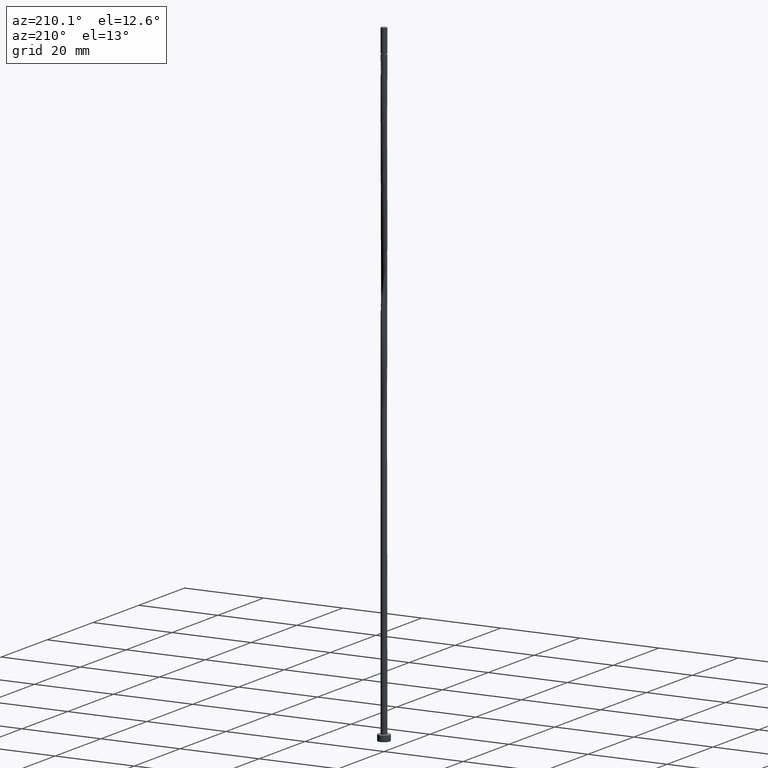
[diagram: clean part render]
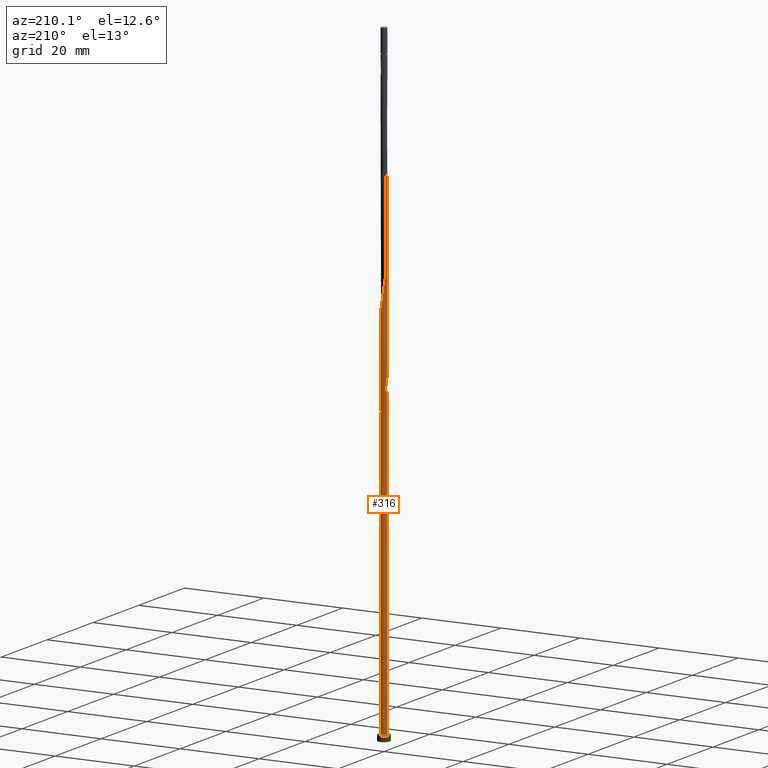
[diagram: same view with one face highlighted and labeled with its STEP entity id]
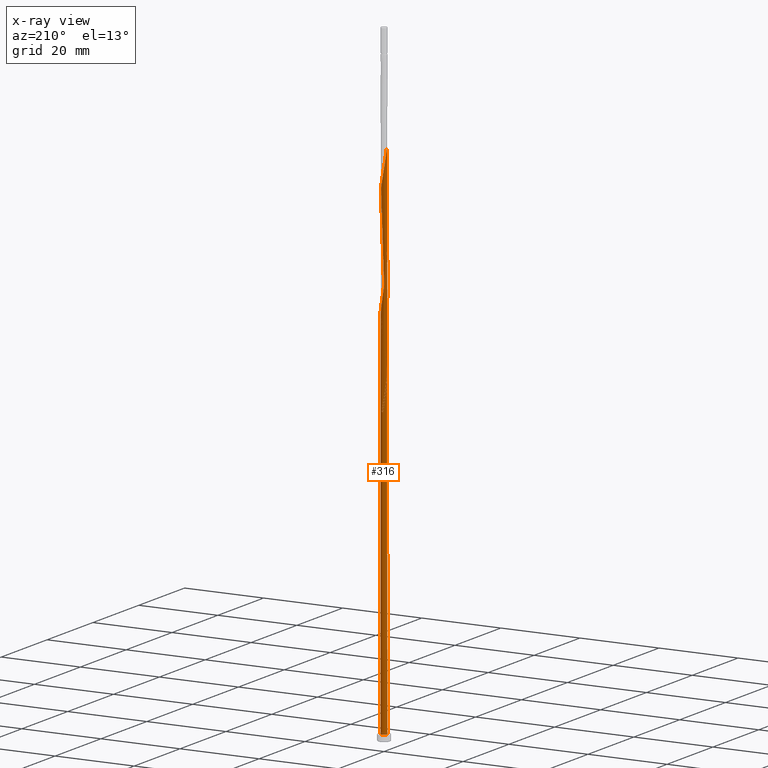
[diagram: x-ray of the same camera — body ghosted, the highlighted face saturated]
A machine part, auxiliary view. The second image highlights one B-rep face of the part: STEP entity #316.
The next image is the same camera in x-ray: the body ghosted, the highlighted face saturated — about 0% of this face is hidden behind the body in this view.
In plain terms, the highlighted cylindrical surface (bore or boss wall) has radius 0.75 mm, axis along (-0, -0, -1).
Its self-contained STEP definition (entity closure, byte-faithful):
#33 = DIRECTION ( 'NONE',  ( -0.000000000000000000, -0.000000000000000000, -1.000000000000000000 ) ) ;
#54 = CARTESIAN_POINT ( 'NONE',  ( 0.04357106947968816812, -0.7564586394380441448, 86.66110191693918807 ) ) ;
#65 = CARTESIAN_POINT ( 'NONE',  ( -0.2549251616522992814, 0.7135413605619579380, 101.2065564623937206 ) ) ;
#74 = CARTESIAN_POINT ( 'NONE',  ( -0.7425581715054576648, -0.1507828677487337565, 107.2671625229997971 ) ) ;
#78 = EDGE_CURVE ( 'NONE', #1143, #1424, #750, .T. ) ;
#80 = CARTESIAN_POINT ( 'NONE',  ( 0.1492481155659936554, -0.7350000000000009859, 87.26716252299982557 ) ) ;
#88 = CARTESIAN_POINT ( 'NONE',  ( 0.5229265053181534340, -0.5376317234276126733, 89.69140494724221924 ) ) ;
#96 = CARTESIAN_POINT ( 'NONE',  ( 0.4577392066508831348, 0.5941168392619601279, 123.6307988866361853 ) ) ;
#101 = VERTEX_POINT ( 'NONE', #1417 ) ;
#111 = CARTESIAN_POINT ( 'NONE',  ( -0.7061990579896029185, 0.2746106366670053589, 131.5095867654240465 ) ) ;
#141 = ORIENTED_EDGE ( 'NONE', *, *, #685, .F. ) ;
#161 = LINE ( 'NONE', #488, #182 ) ;
#167 =( BOUNDED_CURVE ( )  B_SPLINE_CURVE ( 2, ( #1087, #478, #955, #1429, #605, #729, #981, #1486, #570, #1415, #830 ),
 .UNSPECIFIED., .F., .T. ) 
 B_SPLINE_CURVE_WITH_KNOTS ( ( 3, 2, 2, 2, 2, 3 ),
 ( 0.000000000000000000, 0.01136363636363635354, 0.02272727272727270709, 0.03409090909090906063, 0.04545454545454541417, 0.05452521624175129394 ),
 .UNSPECIFIED. ) 
 CURVE ( )  GEOMETRIC_REPRESENTATION_ITEM ( )  RATIONAL_B_SPLINE_CURVE ( ( 0.9090909090909515822, 0.8998376744372534874, 0.9090909090909515822, 0.8998376744372534874, 0.9090909090909515822, 0.8998376744372534874, 0.9090909090909515822, 0.8998376744372534874, 0.9090909090909515822, 0.9017048011080310843, 0.9061101570135917660 ) ) 
 REPRESENTATION_ITEM ( '' )  );
#172 = CARTESIAN_POINT ( 'NONE',  ( 0.2549251616522991148, -0.7135413605619580490, 87.87322312906042043 ) ) ;
#179 = CARTESIAN_POINT ( 'NONE',  ( -0.5431603122336535749, 0.5283038770350836355, 78.17625343209071787 ) ) ;
#180 = EDGE_CURVE ( 'NONE', #101, #1143, #161, .T. ) ;
#181 = CARTESIAN_POINT ( 'NONE',  ( 0.1713128916150395142, 0.7380921381796140546, 98.78231403815132694 ) ) ;
#182 = VECTOR ( 'NONE', #33, 1000.000000000000000 ) ;
#186 = CARTESIAN_POINT ( 'NONE',  ( -0.6065796087172177220, 0.4410908957215835535, 78.78231403815132694 ) ) ;
#189 = CARTESIAN_POINT ( 'NONE',  ( -0.7061990579896029185, 0.2746106366670053589, 104.8429200987573466 ) ) ;
#196 = CARTESIAN_POINT ( 'NONE',  ( 0.4577392066508831348, 0.5941168392619601279, 96.96413221996948550 ) ) ;
#200 = ORIENTED_EDGE ( 'NONE', *, *, #1190, .F. ) ;
#204 = CARTESIAN_POINT ( 'NONE',  ( 0.6065796087172178330, 0.4410908957215833315, 95.75201100784828157 ) ) ;
#211 = CARTESIAN_POINT ( 'NONE',  ( 0.7061990579896032516, -0.2746106366670050813, 118.1762534320907179 ) ) ;
#223 = ORIENTED_EDGE ( 'NONE', *, *, #78, .T. ) ;
#226 = CARTESIAN_POINT ( 'NONE',  ( -0.5229265053181534340, 0.5376317234276126733, 129.6914049472422334 ) ) ;
#241 = CARTESIAN_POINT ( 'NONE',  ( 0.4456267333261540453, -0.6128172042470101388, 115.7520110078483100 ) ) ;
#266 = CARTESIAN_POINT ( 'NONE',  ( -0.7500000000000011102, 1.869602587936987035E-17, 133.0843747103655801 ) ) ;
#279 = AXIS2_PLACEMENT_3D ( 'NONE', #336, #1523, #327 ) ;
#281 = CARTESIAN_POINT ( 'NONE',  ( -0.7500000000000012212, -9.983677819583506438E-16, 81.44995033563405684 ) ) ;
#290 = EDGE_LOOP ( 'NONE', ( #200, #141, #1237, #223, #772, #839, #1510, #1026, #1042 ) ) ;
#292 = CARTESIAN_POINT ( 'NONE',  ( 0.04357106947968818200, 0.7564586394380442558, 74.53988979572706342 ) ) ;
#294 = CARTESIAN_POINT ( 'NONE',  ( -0.3723181010681130276, -0.6599298014888367314, 84.23685949269678019 ) ) ;
#300 = CARTESIAN_POINT ( 'NONE',  ( 0.7487589812118533583, 0.04312757881667920318, 93.32776858360585948 ) ) ;
#307 = CARTESIAN_POINT ( 'NONE',  ( -0.5431603122336535749, -0.5283038770350835245, 83.02473828057559047 ) ) ;
#313 = CARTESIAN_POINT ( 'NONE',  ( -0.2718154963415760905, 0.6990109698342255040, 76.35807161390889064 ) ) ;
#315 = CARTESIAN_POINT ( 'NONE',  ( -0.7500000000000012212, -0.02158164489286728063, 79.87313938175049088 ) ) ;
#316 = ADVANCED_FACE ( 'NONE', ( #616 ), #607, .T. ) ;
#321 = CARTESIAN_POINT ( 'NONE',  ( -0.6002262773101529891, 0.4624462426082153188, 103.6307988866361711 ) ) ;
#327 = DIRECTION ( 'NONE',  ( 1.000000000000000000, 0.000000000000000000, 0.000000000000000000 ) ) ;
#336 = CARTESIAN_POINT ( 'NONE',  ( 0.000000000000000000, 0.000000000000000000, 1.500000000000000000 ) ) ;
#340 = CIRCLE ( 'NONE', #667, 0.7500000000000001110 ) ;
#348 = CARTESIAN_POINT ( 'NONE',  ( -0.3502759474892264691, 0.6631792824044840939, 128.4792837351210153 ) ) ;
#365 = CARTESIAN_POINT ( 'NONE',  ( 0.7425581715054576648, 0.1507828677487336733, 120.6004958563331400 ) ) ;
#391 = DIRECTION ( 'NONE',  ( -1.000000000000000000, 0.000000000000000000, 0.000000000000000000 ) ) ;
#413 = CARTESIAN_POINT ( 'NONE',  ( -0.1713128916150394865, 0.7380921381796138325, 75.75201100784829578 ) ) ;
#415 = CARTESIAN_POINT ( 'NONE',  ( 0.5431603122336540190, 0.5283038770350831914, 96.35807161390889064 ) ) ;
#424 = CARTESIAN_POINT ( 'NONE',  ( 0.7061990579896032516, -0.2746106366670050813, 91.50958676542406067 ) ) ;
#429 = CARTESIAN_POINT ( 'NONE',  ( 0.7425581715054576648, 0.1507828677487336733, 93.93382918966648276 ) ) ;
#434 = CARTESIAN_POINT ( 'NONE',  ( -0.4577392066508833013, -0.5941168392619599059, 110.2974655533028283 ) ) ;
#441 = CARTESIAN_POINT ( 'NONE',  ( -0.7500000000000011102, -1.020803013013594984E-15, 79.75104137703227991 ) ) ;
#455 = CARTESIAN_POINT ( 'NONE',  ( -0.1492481155659935443, 0.7350000000000009859, 127.2671625229997687 ) ) ;
#461 = CARTESIAN_POINT ( 'NONE',  ( 0.7062785383531196004, 0.2523303910784085446, 121.2065564623937348 ) ) ;
#478 = CARTESIAN_POINT ( 'NONE',  ( -0.2549251616522992814, 0.7135413605619579380, 74.53988979572707763 ) ) ;
#488 = CARTESIAN_POINT ( 'NONE',  ( -0.7500000000000001110, 0.000000000000000000, 160.0000000000000000 ) ) ;
#499 = CARTESIAN_POINT ( 'NONE',  ( -0.7500000000000007772, 0.08589669553884342335, 132.5984147573942948 ) ) ;
#521 = CARTESIAN_POINT ( 'NONE',  ( -0.6699989052007818691, 0.3538779144080836936, 79.38837464421192180 ) ) ;
#532 = CARTESIAN_POINT ( 'NONE',  ( 0.4456267333261540453, -0.6128172042470101388, 89.08534434118161016 ) ) ;
#536 = CARTESIAN_POINT ( 'NONE',  ( -0.7425581715054577758, 0.1507828677487338953, 80.60049585633313995 ) ) ;
#538 = CARTESIAN_POINT ( 'NONE',  ( -0.3502759474892264691, 0.6631792824044840939, 101.8126170684543439 ) ) ;
#544 = CARTESIAN_POINT ( 'NONE',  ( -0.6699989052007818691, -0.3538779144080836381, 108.4792837351210295 ) ) ;
#549 = CARTESIAN_POINT ( 'NONE',  ( -0.7062785383531196004, -0.2523303910784086557, 107.8732231290604204 ) ) ;
#557 = CIRCLE ( 'NONE', #842, 0.7500000000000001110 ) ;
#558 = CARTESIAN_POINT ( 'NONE',  ( 0.7062785383531196004, 0.2523303910784085446, 94.53988979572707763 ) ) ;
#563 = CARTESIAN_POINT ( 'NONE',  ( -0.7500000000000001110, 0.000000000000000000, 1.500000000000000000 ) ) ;
#564 = CARTESIAN_POINT ( 'NONE',  ( 0.2718154963415759240, 0.6990109698342252820, 124.8429200987573608 ) ) ;
#570 = CARTESIAN_POINT ( 'NONE',  ( -0.7305794244539263183, 0.1695691733911902921, 78.78231403815131273 ) ) ;
#575 = CARTESIAN_POINT ( 'NONE',  ( 0.04357106947968816812, -0.7564586394380441448, 113.3277685836058737 ) ) ;
#585 = CARTESIAN_POINT ( 'NONE',  ( -0.7305794244539263183, 0.1695691733911902921, 132.1156473714846413 ) ) ;
#597 = CARTESIAN_POINT ( 'NONE',  ( -0.7500000000000011102, 1.869602587936987035E-17, 133.0843747103655801 ) ) ;
#602 = CARTESIAN_POINT ( 'NONE',  ( -0.7500000000000012212, 0.02158164489286663185, 81.32785233091581745 ) ) ;
#605 = CARTESIAN_POINT ( 'NONE',  ( -0.5229265053181534340, 0.5376317234276126733, 76.35807161390889064 ) ) ;
#607 = CYLINDRICAL_SURFACE ( 'NONE', #1252, 0.7500000000000001110 ) ;
#616 = FACE_OUTER_BOUND ( 'NONE', #290, .T. ) ;
#626 = CARTESIAN_POINT ( 'NONE',  ( 0.000000000000000000, 0.000000000000000000, 73.93382918966646855 ) ) ;
#663 = CARTESIAN_POINT ( 'NONE',  ( -0.6699989052007818691, -0.3538779144080836381, 81.81261706845434389 ) ) ;
#667 = AXIS2_PLACEMENT_3D ( 'NONE', #626, #1198, #849 ) ;
#670 = CARTESIAN_POINT ( 'NONE',  ( -0.7549597909182493849, 0.06452771011537537793, 106.0550413108786074 ) ) ;
#678 = CARTESIAN_POINT ( 'NONE',  ( -0.2718154963415762571, -0.6990109698342252820, 111.5095867654240323 ) ) ;
#685 = EDGE_CURVE ( 'NONE', #101, #1295, #1173, .T. ) ;
#688 = CARTESIAN_POINT ( 'NONE',  ( -0.7305794244539263183, 0.1695691733911902921, 105.4489807048179983 ) ) ;
#695 = CARTESIAN_POINT ( 'NONE',  ( 0.6065796087172178330, 0.4410908957215833315, 122.4186776745149530 ) ) ;
#703 = CARTESIAN_POINT ( 'NONE',  ( -0.06387091106767561755, -0.7472753888088291552, 112.7217079775452504 ) ) ;
#710 = CARTESIAN_POINT ( 'NONE',  ( -0.6002262773101529891, 0.4624462426082153188, 130.2974655533028567 ) ) ;
#721 = DIRECTION ( 'NONE',  ( -0.000000000000000000, -0.000000000000000000, -1.000000000000000000 ) ) ;
#723 = CARTESIAN_POINT ( 'NONE',  ( 0.6699989052007818691, 0.3538779144080834160, 121.8126170684543581 ) ) ;
#729 = CARTESIAN_POINT ( 'NONE',  ( -0.6002262773101529891, 0.4624462426082153188, 76.96413221996951393 ) ) ;
#750 = CIRCLE ( 'NONE', #279, 0.7500000000000001110 ) ;
#751 = LINE ( 'NONE', #1437, #863 ) ;
#772 = ORIENTED_EDGE ( 'NONE', *, *, #1495, .T. ) ;
#773 = CARTESIAN_POINT ( 'NONE',  ( -0.7500000000000012212, -9.983677819583506438E-16, 81.44995033563405684 ) ) ;
#786 = CARTESIAN_POINT ( 'NONE',  ( 0.6699989052007818691, 0.3538779144080834160, 95.14595040178768670 ) ) ;
#794 = CARTESIAN_POINT ( 'NONE',  ( -0.6065796087172176110, -0.4410908957215836090, 82.41867767451493876 ) ) ;
#804 = CARTESIAN_POINT ( 'NONE',  ( -0.6532126676498779538, 0.3685284396376102833, 104.2368594926967660 ) ) ;
#827 = CARTESIAN_POINT ( 'NONE',  ( -0.4456267333261539343, 0.6128172042470101388, 129.0853443411816386 ) ) ;
#830 = CARTESIAN_POINT ( 'NONE',  ( -0.7500000000000011102, -1.020803013013594984E-15, 79.75104137703227991 ) ) ;
#835 = CARTESIAN_POINT ( 'NONE',  ( 0.7487589812118533583, 0.04312757881667920318, 119.9944352502725451 ) ) ;
#839 = ORIENTED_EDGE ( 'NONE', *, *, #180, .F. ) ;
#841 = CARTESIAN_POINT ( 'NONE',  ( 0.5431603122336540190, 0.5283038770350831914, 123.0247382805755763 ) ) ;
#842 = AXIS2_PLACEMENT_3D ( 'NONE', #1232, #993, #1225 ) ;
#849 = DIRECTION ( 'NONE',  ( -1.000000000000000000, 0.000000000000000000, 0.000000000000000000 ) ) ;
#863 = VECTOR ( 'NONE', #721, 1000.000000000000000 ) ;
#879 = EDGE_CURVE ( 'NONE', #903, #1534, #906, .T. ) ;
#894 = CARTESIAN_POINT ( 'NONE',  ( 0.7305794244539263183, -0.1695691733911902643, 92.11564737148465554 ) ) ;
#900 = CARTESIAN_POINT ( 'NONE',  ( 0.2718154963415759240, 0.6990109698342252820, 98.17625343209071787 ) ) ;
#903 = VERTEX_POINT ( 'NONE', #773 ) ;
#906 =( BOUNDED_CURVE ( )  B_SPLINE_CURVE ( 2, ( #281, #602, #1076, #536, #1470, #521, #186, #179, #1379, #1358, #313, #413, #1238, #292, #1385 ),
 .UNSPECIFIED., .F., .T. ) 
 B_SPLINE_CURVE_WITH_KNOTS ( ( 3, 2, 2, 2, 2, 2, 2, 3 ),
 ( 0.9295252162417512176, 0.9318181818181817677, 0.9431818181818182323, 0.9545454545454545858, 0.9659090909090909394, 0.9772727272727272929, 0.9886363636363636465, 1.000000000000000000 ),
 .UNSPECIFIED. ) 
 CURVE ( )  GEOMETRIC_REPRESENTATION_ITEM ( )  RATIONAL_B_SPLINE_CURVE ( ( 0.9061101570135922101, 0.9072237824201744294, 0.9090909090909520263, 0.8998376744372540426, 0.9090909090909520263, 0.8998376744372540426, 0.9090909090909520263, 0.8998376744372540426, 0.9090909090909520263, 0.8998376744372540426, 0.9090909090909520263, 0.8998376744372540426, 0.9090909090909520263, 0.8998376744372540426, 0.9090909090909520263 ) ) 
 REPRESENTATION_ITEM ( '' )  );
#907 = CARTESIAN_POINT ( 'NONE',  ( 0.6532126676498778428, -0.3685284396376103944, 90.90352615936345160 ) ) ;
#915 = CARTESIAN_POINT ( 'NONE',  ( -0.1492481155659935443, 0.7350000000000009859, 100.6004958563331257 ) ) ;
#937 = CARTESIAN_POINT ( 'NONE',  ( 0.06387091106767570081, 0.7472753888088291552, 126.0550413108785506 ) ) ;
#946 = CARTESIAN_POINT ( 'NONE',  ( 0.6532126676498778428, -0.3685284396376103944, 117.5701928260300946 ) ) ;
#955 = CARTESIAN_POINT ( 'NONE',  ( -0.3502759474892264691, 0.6631792824044840939, 75.14595040178768670 ) ) ;
#958 = CARTESIAN_POINT ( 'NONE',  ( 0.000000000000000000, 0.000000000000000000, 160.0000000000000000 ) ) ;
#972 = VERTEX_POINT ( 'NONE', #1012 ) ;
#981 = CARTESIAN_POINT ( 'NONE',  ( -0.6532126676498779538, 0.3685284396376102833, 77.57019282603009458 ) ) ;
#986 = CARTESIAN_POINT ( 'NONE',  ( 0.1492481155659939329, 0.7350000000000012079, 73.93382918966646855 ) ) ;
#993 = DIRECTION ( 'NONE',  ( 0.000000000000000000, 0.000000000000000000, 1.000000000000000000 ) ) ;
#1008 = CARTESIAN_POINT ( 'NONE',  ( 0.3502759474892264135, -0.6631792824044840939, 88.47928373512101530 ) ) ;
#1012 = CARTESIAN_POINT ( 'NONE',  ( -0.1492481155659935443, 0.7350000000000009859, 73.93382918966646855 ) ) ;
#1014 = CARTESIAN_POINT ( 'NONE',  ( 0.7549597909182493849, -0.06452771011537533630, 92.72170797754523619 ) ) ;
#1020 = CARTESIAN_POINT ( 'NONE',  ( -0.6065796087172176110, -0.4410908957215836090, 109.0853443411816386 ) ) ;
#1026 = ORIENTED_EDGE ( 'NONE', *, *, #1221, .T. ) ;
#1029 = CARTESIAN_POINT ( 'NONE',  ( -0.7487589812118533583, -0.04312757881667928644, 79.99443525027253088 ) ) ;
#1038 = CARTESIAN_POINT ( 'NONE',  ( 0.3723181010681126391, 0.6599298014888367314, 124.2368594926967802 ) ) ;
#1042 = ORIENTED_EDGE ( 'NONE', *, *, #879, .F. ) ;
#1045 = CARTESIAN_POINT ( 'NONE',  ( 0.1713128916150395142, 0.7380921381796140546, 125.4489807048179983 ) ) ;
#1069 = CARTESIAN_POINT ( 'NONE',  ( 0.6002262773101529891, -0.4624462426082153743, 116.9641322199694997 ) ) ;
#1076 = CARTESIAN_POINT ( 'NONE',  ( -0.7487589812118536914, 0.04312757881667938359, 81.20655646239376324 ) ) ;
#1087 = CARTESIAN_POINT ( 'NONE',  ( -0.1492481155659935443, 0.7350000000000009859, 73.93382918966646855 ) ) ;
#1131 = CARTESIAN_POINT ( 'NONE',  ( -0.04357106947968807098, 0.7564586394380441448, 99.99443525027254509 ) ) ;
#1138 = CARTESIAN_POINT ( 'NONE',  ( -0.7487589812118533583, -0.04312757881667928644, 106.6611019169392023 ) ) ;
#1143 = VERTEX_POINT ( 'NONE', #563 ) ;
#1145 = CARTESIAN_POINT ( 'NONE',  ( -0.06387091106767561755, -0.7472753888088291552, 86.05504131087859321 ) ) ;
#1163 = CARTESIAN_POINT ( 'NONE',  ( 0.3502759474892264135, -0.6631792824044840939, 115.1459504017876867 ) ) ;
#1173 =( BOUNDED_CURVE ( )  B_SPLINE_CURVE ( 2, ( #441, #315, #1029, #1266, #1367, #663, #794, #307, #1240, #294, #1498, #1489, #1145, #54, #80, #172, #1008, #532, #88, #1505, #907, #424, #894, #1014, #300, #429, #558, #786, #204, #415, #196, #1248, #900, #181, #1374, #1131, #915, #65, #538, #1258, #1387, #321, #804, #189, #688, #670, #1138, #74, #549, #544, #1020, #1272, #434, #1381, #678, #1288, #703, #575, #1426, #1538, #1163, #241, #1298, #1069, #946, #211, #1420, #1527, #835, #365, #461, #723, #695, #841, #96, #1038, #564, #1045, #937, #1518, #455, #1411, #348, #827, #226, #710, #1177, #111, #585, #499, #266 ),
 .UNSPECIFIED., .F., .T. ) 
 B_SPLINE_CURVE_WITH_KNOTS ( ( 3, 2, 2, 2, 2, 2, 2, 2, 2, 2, 2, 2, 2, 2, 2, 2, 2, 2, 2, 2, 2, 2, 2, 2, 2, 2, 2, 2, 2, 2, 2, 2, 2, 2, 2, 2, 2, 2, 2, 2, 2, 2, 2, 2, 2, 3 ),
 ( 0.05452521624175129394, 0.05681818181818176772, 0.06818181818181823228, 0.07954545454545458583, 0.09090909090909093937, 0.1022727272727272929, 0.1136363636363636465, 0.1250000000000000000, 0.1363636363636363535, 0.1477272727272727071, 0.1590909090909090606, 0.1704545454545454142, 0.1818181818181817677, 0.1931818181818182323, 0.2045454545454545858, 0.2159090909090909394, 0.2272727272727272929, 0.2386363636363636465, 0.2500000000000000000, 0.2613636363636363535, 0.2727272727272727071, 0.2840909090909090606, 0.2954545454545454142, 0.3068181818181817677, 0.3181818181818182323, 0.3295454545454545858, 0.3409090909090909394, 0.3522727272727272929, 0.3636363636363636465, 0.3750000000000000000, 0.3863636363636363535, 0.3977272727272727071, 0.4090909090909090606, 0.4204545454545454142, 0.4318181818181817677, 0.4431818181818182323, 0.4545454545454545858, 0.4659090909090909394, 0.4772727272727272929, 0.4886363636363636465, 0.5000000000000000000, 0.5113636363636363535, 0.5227272727272727071, 0.5340909090909091717, 0.5454545454545454142, 0.5545252162417512176 ),
 .UNSPECIFIED. ) 
 CURVE ( )  GEOMETRIC_REPRESENTATION_ITEM ( )  RATIONAL_B_SPLINE_CURVE ( ( 0.9061101570135917660, 0.9072237824201739853, 0.9090909090909515822, 0.8998376744372534874, 0.9090909090909515822, 0.8998376744372534874, 0.9090909090909515822, 0.8998376744372534874, 0.9090909090909515822, 0.8998376744372534874, 0.9090909090909515822, 0.8998376744372534874, 0.9090909090909515822, 0.8998376744372534874, 0.9090909090909515822, 0.8998376744372534874, 0.9090909090909515822, 0.8998376744372534874, 0.9090909090909515822, 0.8998376744372534874, 0.9090909090909515822, 0.8998376744372534874, 0.9090909090909515822, 0.8998376744372534874, 0.9090909090909515822, 0.8998376744372534874, 0.9090909090909515822, 0.8998376744372534874, 0.9090909090909515822, 0.8998376744372534874, 0.9090909090909515822, 0.8998376744372534874, 0.9090909090909515822, 0.8998376744372534874, 0.9090909090909515822, 0.8998376744372534874, 0.9090909090909515822, 0.8998376744372534874, 0.9090909090909515822, 0.8998376744372534874, 0.9090909090909515822, 0.8998376744372534874, 0.9090909090909515822, 0.8998376744372534874, 0.9090909090909515822, 0.8998376744372534874, 0.9090909090909515822, 0.8998376744372534874, 0.9090909090909515822, 0.8998376744372534874, 0.9090909090909515822, 0.8998376744372534874, 0.9090909090909515822, 0.8998376744372534874, 0.9090909090909515822, 0.8998376744372534874, 0.9090909090909515822, 0.8998376744372534874, 0.9090909090909515822, 0.8998376744372534874, 0.9090909090909515822, 0.8998376744372534874, 0.9090909090909515822, 0.8998376744372534874, 0.9090909090909515822, 0.8998376744372534874, 0.9090909090909515822, 0.8998376744372534874, 0.9090909090909515822, 0.8998376744372534874, 0.9090909090909515822, 0.8998376744372534874, 0.9090909090909515822, 0.8998376744372534874, 0.9090909090909515822, 0.8998376744372534874, 0.9090909090909515822, 0.8998376744372534874, 0.9090909090909515822, 0.8998376744372534874, 0.9090909090909515822, 0.8998376744372534874, 0.9090909090909515822, 0.8998376744372534874, 0.9090909090909515822, 0.8998376744372534874, 0.9090909090909515822, 0.8998376744372534874, 0.9090909090909515822, 0.9017048011080311953, 0.9061101570135916550 ) ) 
 REPRESENTATION_ITEM ( '' )  );
#1177 = CARTESIAN_POINT ( 'NONE',  ( -0.6532126676498779538, 0.3685284396376102833, 130.9035261593634232 ) ) ;
#1190 = EDGE_CURVE ( 'NONE', #1295, #903, #751, .T. ) ;
#1198 = DIRECTION ( 'NONE',  ( 0.000000000000000000, -0.000000000000000000, -1.000000000000000000 ) ) ;
#1221 = EDGE_CURVE ( 'NONE', #972, #1534, #340, .T. ) ;
#1225 = DIRECTION ( 'NONE',  ( 1.000000000000000000, 0.000000000000000000, 0.000000000000000000 ) ) ;
#1232 = CARTESIAN_POINT ( 'NONE',  ( 0.000000000000000000, 0.000000000000000000, 1.500000000000000000 ) ) ;
#1237 = ORIENTED_EDGE ( 'NONE', *, *, #180, .T. ) ;
#1238 = CARTESIAN_POINT ( 'NONE',  ( -0.06387091106767565918, 0.7472753888088292662, 75.14595040178768670 ) ) ;
#1240 = CARTESIAN_POINT ( 'NONE',  ( -0.4577392066508833013, -0.5941168392619599059, 83.63079888663618533 ) ) ;
#1248 = CARTESIAN_POINT ( 'NONE',  ( 0.3723181010681126391, 0.6599298014888367314, 97.57019282603013721 ) ) ;
#1252 = AXIS2_PLACEMENT_3D ( 'NONE', #958, #1461, #391 ) ;
#1258 = CARTESIAN_POINT ( 'NONE',  ( -0.4456267333261539343, 0.6128172042470101388, 102.4186776745149530 ) ) ;
#1266 = CARTESIAN_POINT ( 'NONE',  ( -0.7425581715054576648, -0.1507828677487337565, 80.60049585633315417 ) ) ;
#1272 = CARTESIAN_POINT ( 'NONE',  ( -0.5431603122336535749, -0.5283038770350835245, 109.6914049472421766 ) ) ;
#1288 = CARTESIAN_POINT ( 'NONE',  ( -0.1713128916150394032, -0.7380921381796140546, 112.1156473714846840 ) ) ;
#1295 = VERTEX_POINT ( 'NONE', #597 ) ;
#1298 = CARTESIAN_POINT ( 'NONE',  ( 0.5229265053181534340, -0.5376317234276126733, 116.3580716139089049 ) ) ;
#1303 = EDGE_CURVE ( 'NONE', #972, #101, #167, .T. ) ;
#1314 = CARTESIAN_POINT ( 'NONE',  ( 0.7500000000000001110, 0.000000000000000000, 1.500000000000000000 ) ) ;
#1358 = CARTESIAN_POINT ( 'NONE',  ( -0.3723181010681128611, 0.6599298014888365094, 76.96413221996948550 ) ) ;
#1367 = CARTESIAN_POINT ( 'NONE',  ( -0.7062785383531196004, -0.2523303910784086557, 81.20655646239373482 ) ) ;
#1374 = CARTESIAN_POINT ( 'NONE',  ( 0.06387091106767570081, 0.7472753888088291552, 99.38837464421193602 ) ) ;
#1379 = CARTESIAN_POINT ( 'NONE',  ( -0.4577392066508833568, 0.5941168392619602390, 77.57019282603009458 ) ) ;
#1381 = CARTESIAN_POINT ( 'NONE',  ( -0.3723181010681130276, -0.6599298014888367314, 110.9035261593634516 ) ) ;
#1385 = CARTESIAN_POINT ( 'NONE',  ( 0.1492481155659939329, 0.7350000000000012079, 73.93382918966646855 ) ) ;
#1387 = CARTESIAN_POINT ( 'NONE',  ( -0.5229265053181534340, 0.5376317234276126733, 103.0247382805755336 ) ) ;
#1411 = CARTESIAN_POINT ( 'NONE',  ( -0.2549251616522992814, 0.7135413605619579380, 127.8732231290604062 ) ) ;
#1415 = CARTESIAN_POINT ( 'NONE',  ( -0.7500000000000012212, 0.08589669553884188291, 79.26508142406095203 ) ) ;
#1417 = CARTESIAN_POINT ( 'NONE',  ( -0.7500000000000011102, -1.020803013013594984E-15, 79.75104137703227991 ) ) ;
#1420 = CARTESIAN_POINT ( 'NONE',  ( 0.7305794244539263183, -0.1695691733911902643, 118.7823140381512985 ) ) ;
#1424 = VERTEX_POINT ( 'NONE', #1314 ) ;
#1426 = CARTESIAN_POINT ( 'NONE',  ( 0.1492481155659936554, -0.7350000000000009859, 113.9338291896664828 ) ) ;
#1429 = CARTESIAN_POINT ( 'NONE',  ( -0.4456267333261539343, 0.6128172042470101388, 75.75201100784828157 ) ) ;
#1437 = CARTESIAN_POINT ( 'NONE',  ( -0.7500000000000001110, 0.000000000000000000, 160.0000000000000000 ) ) ;
#1461 = DIRECTION ( 'NONE',  ( -0.000000000000000000, -0.000000000000000000, -1.000000000000000000 ) ) ;
#1470 = CARTESIAN_POINT ( 'NONE',  ( -0.7062785383531198224, 0.2523303910784087667, 79.99443525027255930 ) ) ;
#1486 = CARTESIAN_POINT ( 'NONE',  ( -0.7061990579896029185, 0.2746106366670053589, 78.17625343209071787 ) ) ;
#1489 = CARTESIAN_POINT ( 'NONE',  ( -0.1713128916150394032, -0.7380921381796140546, 85.44898070481798413 ) ) ;
#1495 = EDGE_CURVE ( 'NONE', #1424, #1143, #557, .T. ) ;
#1498 = CARTESIAN_POINT ( 'NONE',  ( -0.2718154963415762571, -0.6990109698342252820, 84.84292009875740348 ) ) ;
#1505 = CARTESIAN_POINT ( 'NONE',  ( 0.6002262773101529891, -0.4624462426082153743, 90.29746555330284252 ) ) ;
#1510 = ORIENTED_EDGE ( 'NONE', *, *, #1303, .F. ) ;
#1518 = CARTESIAN_POINT ( 'NONE',  ( -0.04357106947968807098, 0.7564586394380441448, 126.6611019169391881 ) ) ;
#1523 = DIRECTION ( 'NONE',  ( 0.000000000000000000, 0.000000000000000000, 1.000000000000000000 ) ) ;
#1527 = CARTESIAN_POINT ( 'NONE',  ( 0.7549597909182493849, -0.06452771011537533630, 119.3883746442119218 ) ) ;
#1534 = VERTEX_POINT ( 'NONE', #986 ) ;
#1538 = CARTESIAN_POINT ( 'NONE',  ( 0.2549251616522991148, -0.7135413605619580490, 114.5398897957270918 ) ) ;